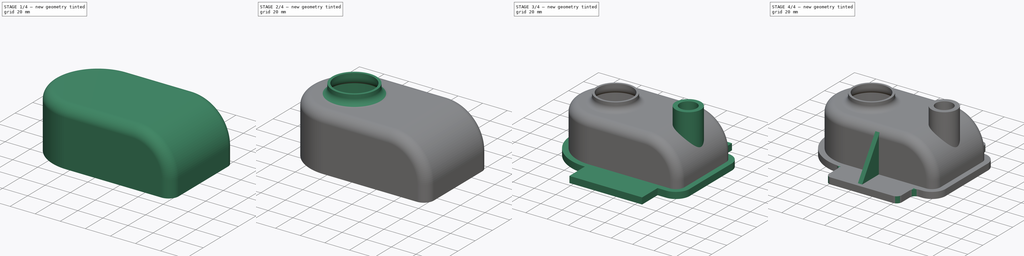
[diagram: build sequence overview — one tinted view per stage of 4, left to right]
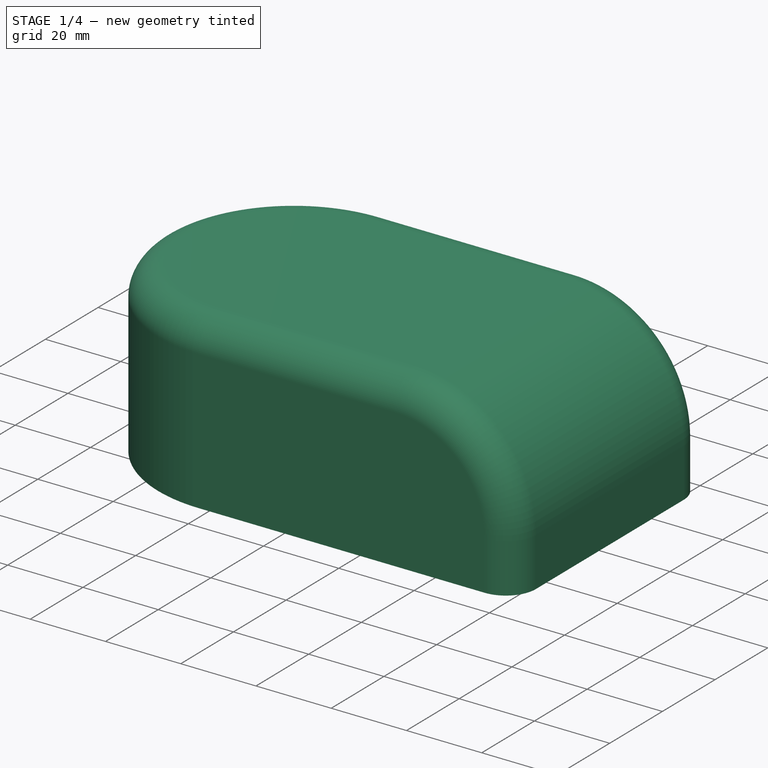
[diagram: stage 1 of 4 — iso view after this stage's code; geometry added in this stage tinted green]
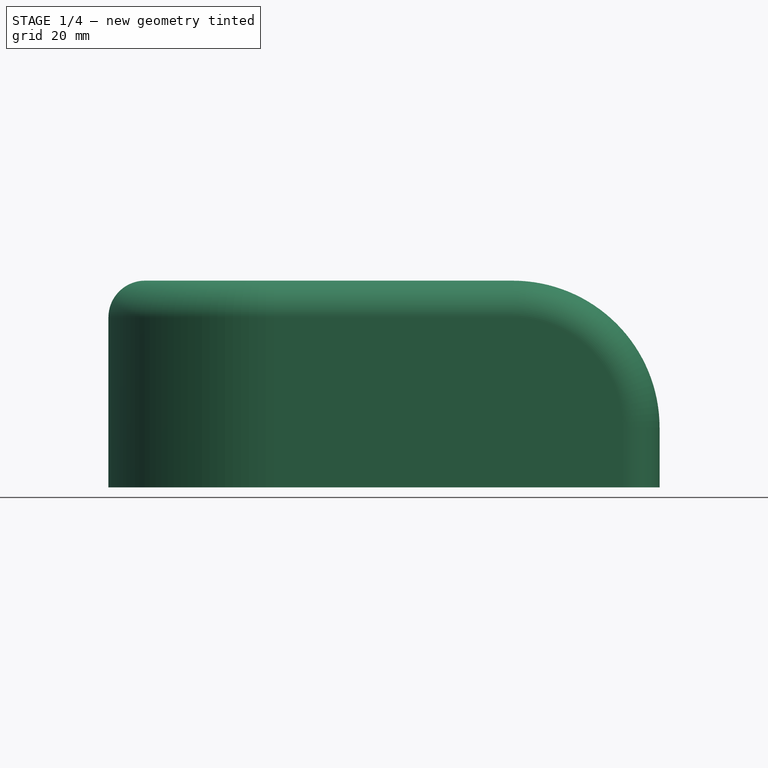
[diagram: stage 1 of 4 — front view after this stage's code; geometry added in this stage tinted green]
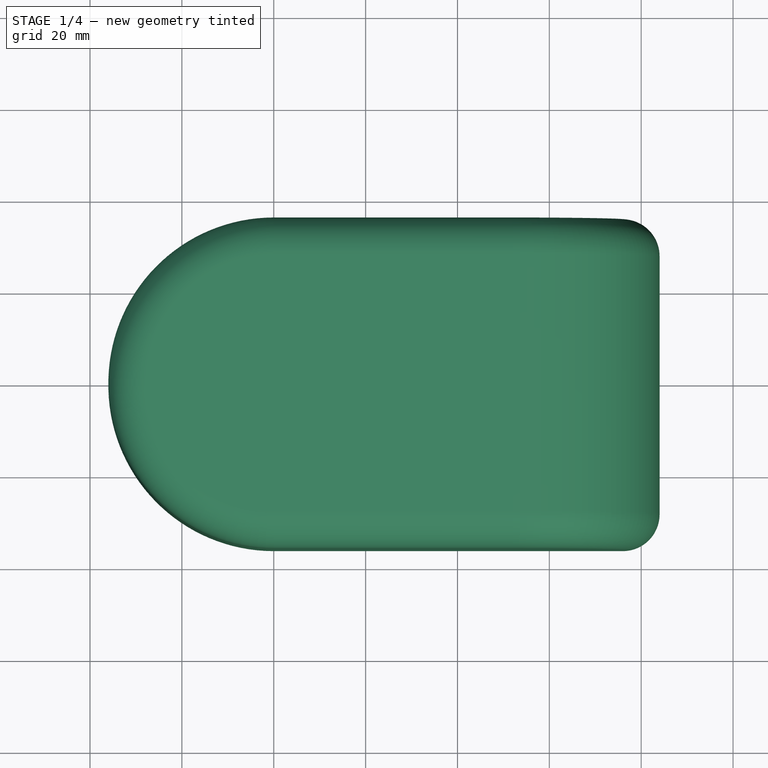
[diagram: stage 1 of 4 — top view after this stage's code; geometry added in this stage tinted green]
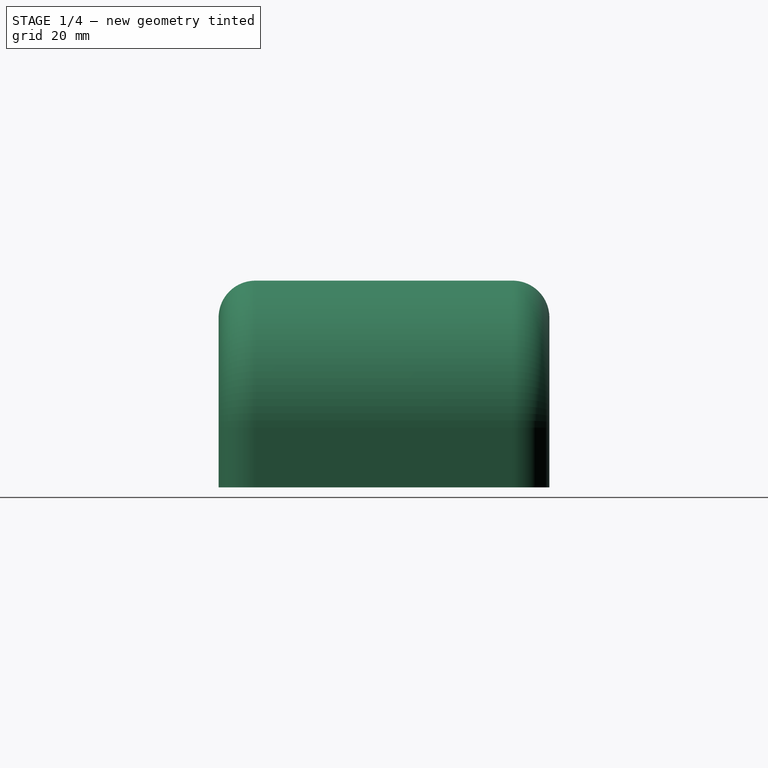
[diagram: stage 1 of 4 — right view after this stage's code; geometry added in this stage tinted green]
FCSTD DOCUMENT  (FreeCAD 0.21R33771 (Git))
Label: ex02
License: All rights reserved
LicenseURL: https://en.wikipedia.org/wiki/All_rights_reserved
objects: Sketcher::SketchObject×7, PartDesign::Pad×6, PartDesign::Fillet×4, PartDesign::Plane×2, PartDesign::Thickness×1, PartDesign::Pocket×1, PartDesign::Mirrored×1, PartDesign::Body×1
note: 35 computed .brp shape members not serialized (recipe doc carries the construction recipe); baked Part::Feature solids carry a one-line shape summary decoded from their .brp

FEATURE [Sketcher::SketchObject] Sketch
  FullyConstrained = true
  MapMode = 5
  Support = -> [XY_Plane]
  sketch-geometry (6):
    g0: ArcOfCircle CenterX=0 CenterY=0 CenterZ=0 NormalX=0 NormalY=0 NormalZ=1 AngleXU=0 Radius=36 StartAngle=1.5708 EndAngle=4.71239
    g1: ArcOfCircle CenterX=84 CenterY=0 CenterZ=0 NormalX=0 NormalY=0 NormalZ=1 AngleXU=0 Radius=36 StartAngle=4.71239 EndAngle=7.85398
    g2: LineSegment StartX=5.05e-13 StartY=-36 StartZ=0 EndX=84 EndY=-36 EndZ=0
    g3: LineSegment StartX=84 StartY=36 StartZ=0 EndX=4.974e-13 EndY=36 EndZ=0
    g4: LineSegment StartX=84 StartY=36 StartZ=0 EndX=84 EndY=-36 EndZ=0
    g5: GeomPoint X=-36 Y=0 Z=0
  constraints (13):
    c: Tangent(g0,g2) = -1.5708
    c: Tangent(g2,g1) = -1.5708
    c: Tangent(g1,g3) = -1.5708
    c: Tangent(g3,g0) = -1.5708
    c: Equal(g0,g1)
    c: Coincident(g0,g-1)
    c: PointOnObject(g1,g-1)
    c: Coincident(g4,g3)
    c: Coincident(g4,g2)
    c: PointOnObject(g5,g0)
    c: PointOnObject(g5,g-1)
    c: DistanceX(g5,g1) = 120
    c: DistanceY(g4,g4) = 72
FEATURE [PartDesign::Pad] Pad
  Direction = (0,0,1)
  Length = 45
  Length2 = 10
  Profile = -> Sketch
  ReferenceAxis = -> Sketch [N_Axis]
  Type = 0
FEATURE [PartDesign::Fillet] Fillet
  Base = -> Pad [Edge10]
  BaseFeature = -> Pad
  Radius = 32
  SupportTransform = false
  UseAllEdges = false
FEATURE [PartDesign::Fillet] Fillet001
  Base = -> Fillet [Edge2]
  BaseFeature = -> Fillet
  Radius = 8
  SupportTransform = false
  UseAllEdges = false
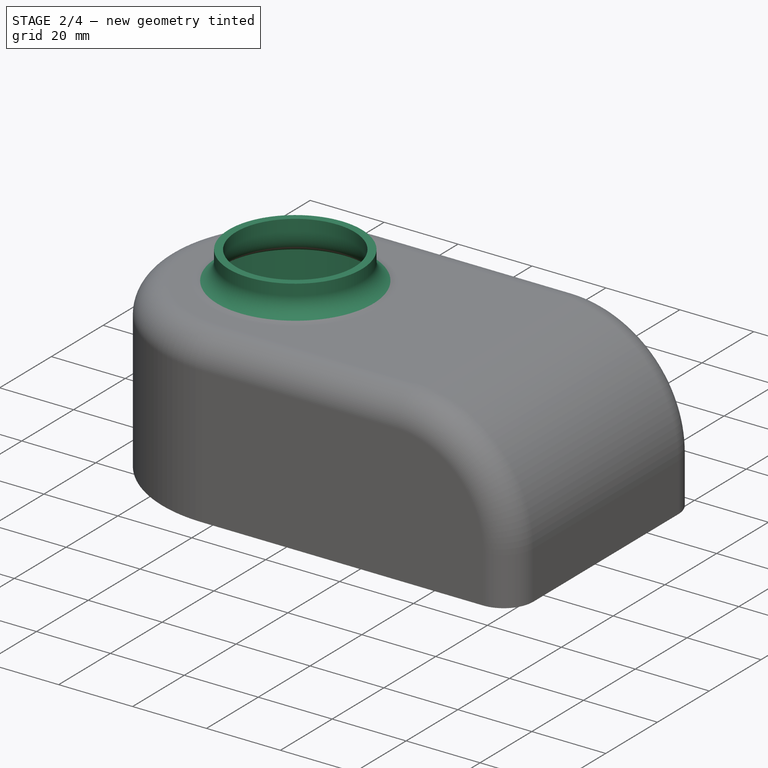
[diagram: stage 2 of 4 — iso view after this stage's code; geometry added in this stage tinted green]
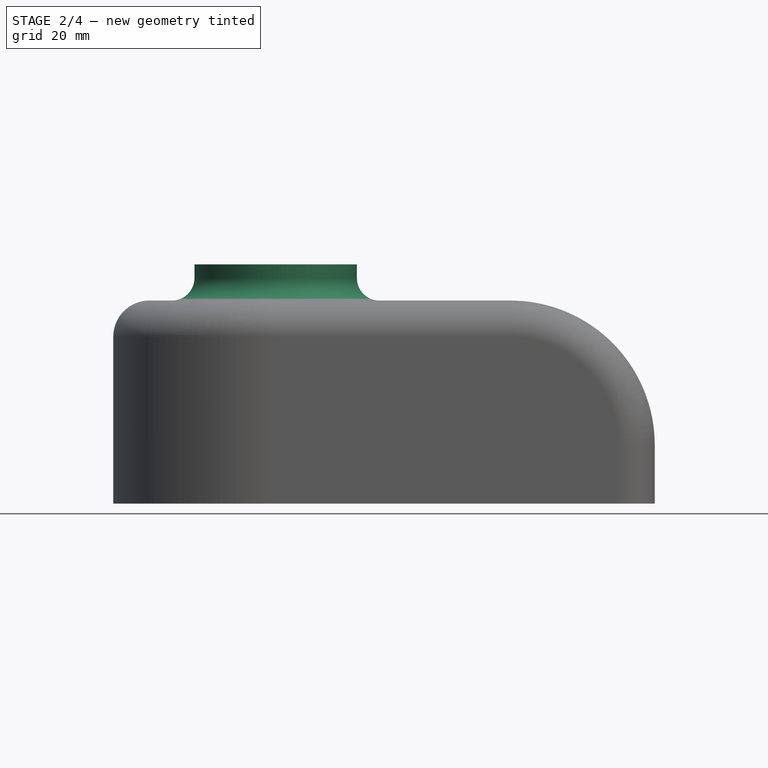
[diagram: stage 2 of 4 — front view after this stage's code; geometry added in this stage tinted green]
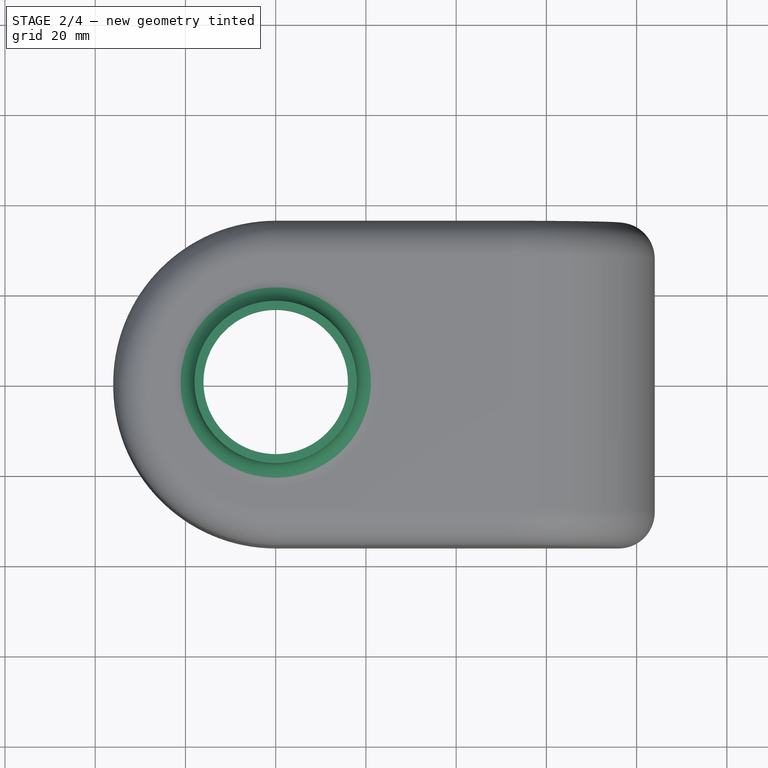
[diagram: stage 2 of 4 — top view after this stage's code; geometry added in this stage tinted green]
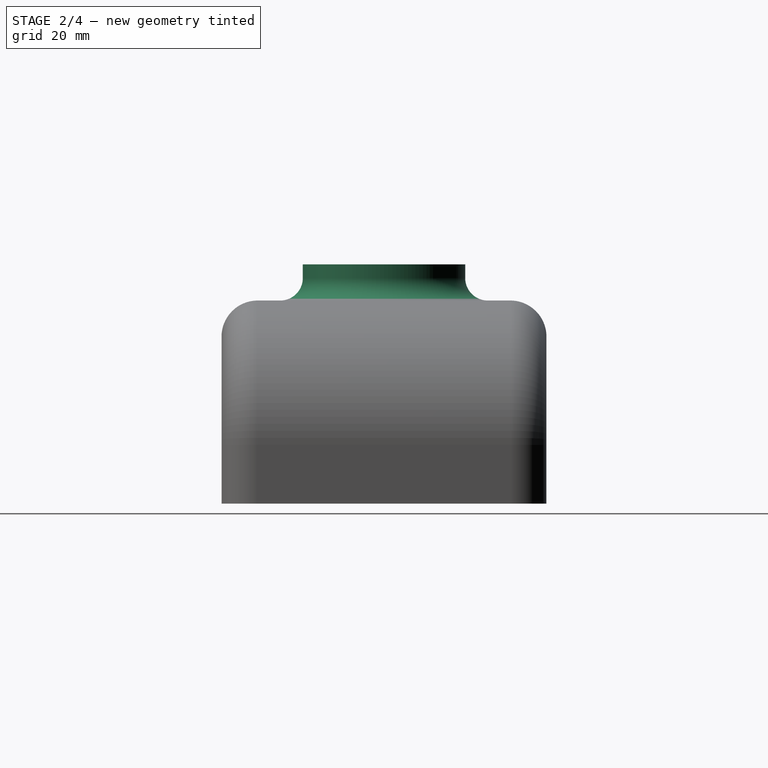
[diagram: stage 2 of 4 — right view after this stage's code; geometry added in this stage tinted green]
FEATURE [Sketcher::SketchObject] Sketch001
  FullyConstrained = true
  MapMode = 5
  Placement = pos=(0,0,45) rot=(0,0,1;0rad)
  Support = -> [Fillet001]
  sketch-geometry (1):
    g0: Circle CenterX=0 CenterY=0 CenterZ=0 NormalX=0 NormalY=0 NormalZ=1 AngleXU=0 Radius=18
  constraints (2):
    c: Coincident(g0,g-1)
    c: Diameter(g0) = 36
FEATURE [PartDesign::Pad] Pad001
  BaseFeature = -> Fillet001
  Direction = (0,0,1)
  Length = 8
  Length2 = 10
  Profile = -> Sketch001
  ReferenceAxis = -> Sketch001 [N_Axis]
  Type = 0
FEATURE [PartDesign::Fillet] Fillet002
  Base = -> Pad001 [Edge30]
  BaseFeature = -> Pad001
  Radius = 5
  SupportTransform = false
  UseAllEdges = false
FEATURE [PartDesign::Thickness] Thickness
  Base = -> Fillet002 [Face17,Face14]
  BaseFeature = -> Fillet002
  Intersection = false
  Join = 0
  Mode = 0
  Reversed = true
  SupportTransform = false
  Value = 2
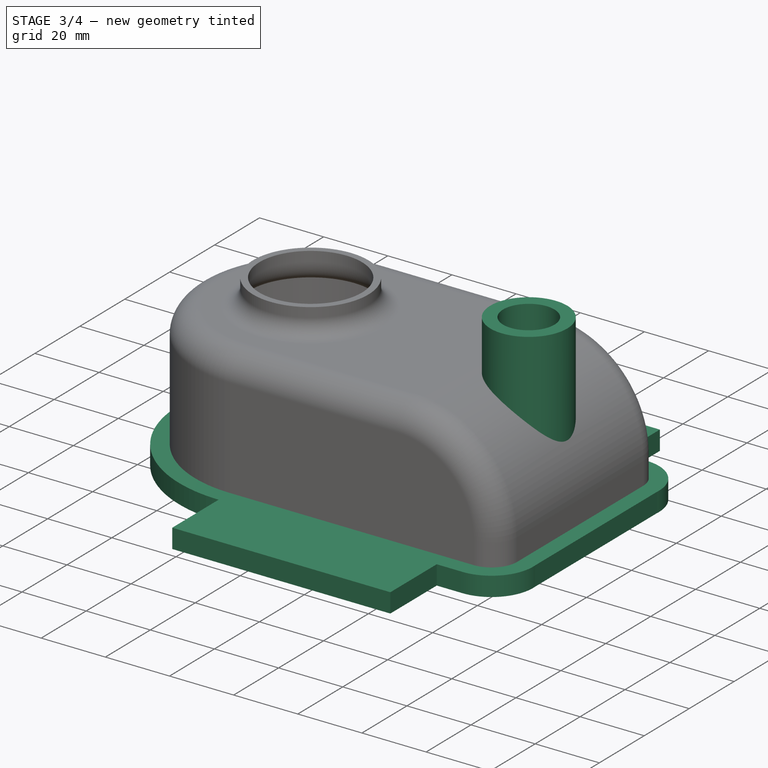
[diagram: stage 3 of 4 — iso view after this stage's code; geometry added in this stage tinted green]
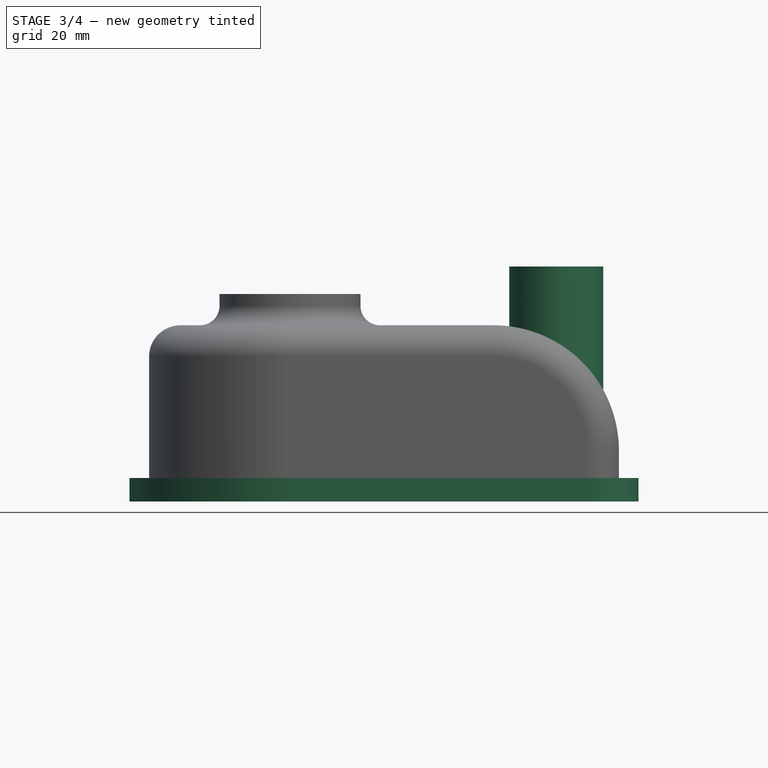
[diagram: stage 3 of 4 — front view after this stage's code; geometry added in this stage tinted green]
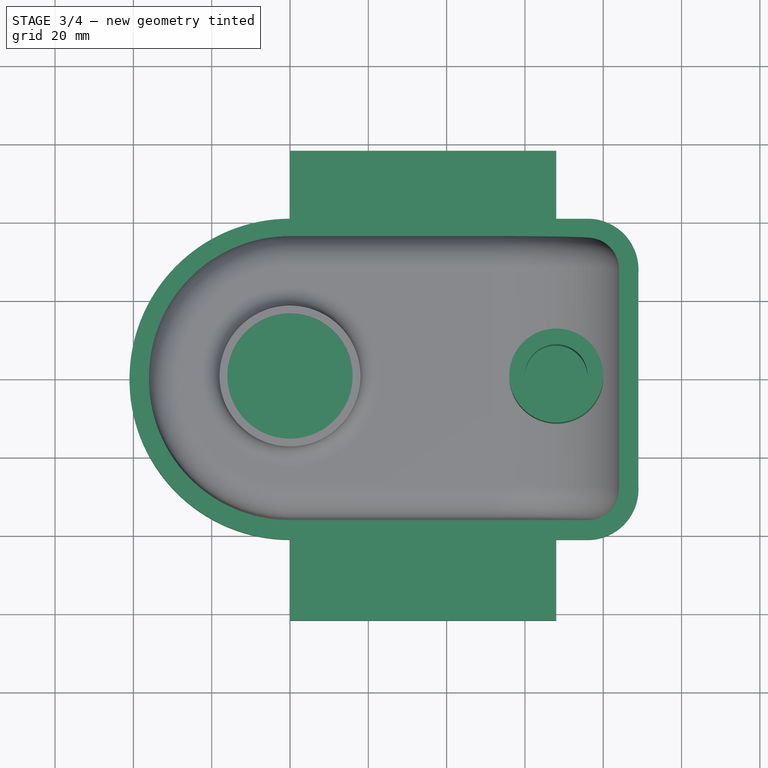
[diagram: stage 3 of 4 — top view after this stage's code; geometry added in this stage tinted green]
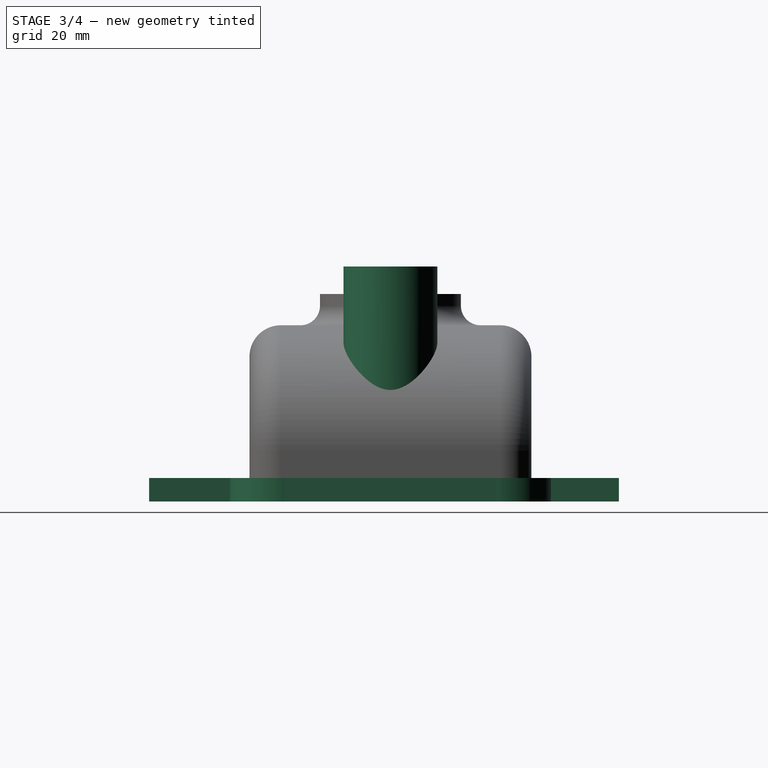
[diagram: stage 3 of 4 — right view after this stage's code; geometry added in this stage tinted green]
FEATURE [PartDesign::Plane] DatumPlane
  AttachmentOffset = pos=(0,0,60) rot=(0,0,1;0rad)
  Length = 154.844
  MapMode = 5
  Placement = pos=(0,0,60) rot=(0,0,1;0rad)
  ResizeMode = 0
  Support = -> [XY_Plane]
  Width = 144.968
FEATURE [Sketcher::SketchObject] Sketch002
  ExternalGeometry = -> [Thickness]
  FullyConstrained = true
  MapMode = 5
  Placement = pos=(0,0,60) rot=(0,0,1;0rad)
  Support = -> [DatumPlane]
  sketch-geometry (1):
    g0: Circle CenterX=68 CenterY=0 CenterZ=0 NormalX=0 NormalY=0 NormalZ=1 AngleXU=0 Radius=12
  constraints (3):
    c: PointOnObject(g0,g-1)
    c: Diameter(g0) = 24
    c: Distance(g0,g-3) = 16
FEATURE [PartDesign::Pad] Pad002
  BaseFeature = -> Thickness
  Direction = (0,0,1)
  Length = 18
  Length2 = 10
  Profile = -> Sketch002
  ReferenceAxis = -> Sketch002 [N_Axis]
  Reversed = true
  Type = 2
FEATURE [Sketcher::SketchObject] Sketch003
  ExternalGeometry = -> [Pad002]
  FullyConstrained = true
  MapMode = 5
  Placement = pos=(0,0,60) rot=(0,0,1;0rad)
  Support = -> [Pad002]
  sketch-geometry (3):
    g0: Circle CenterX=68 CenterY=0 CenterZ=0 NormalX=0 NormalY=0 NormalZ=1 AngleXU=0 Radius=8
    g1: GeomPoint X=76 Y=0 Z=0
    g2: GeomPoint X=80 Y=0 Z=0
  constraints (6):
    c: Coincident(g0,g-3)
    c: PointOnObject(g1,g0)
    c: PointOnObject(g1,g-1)
    c: PointOnObject(g2,g-3)
    c: PointOnObject(g2,g-1)
    c: DistanceX(g1,g2) = 4
FEATURE [PartDesign::Pocket] Pocket
  BaseFeature = -> Pad002
  Direction = (0,0,-1)
  Length = 5
  Length2 = 5
  Profile = -> Sketch003
  ReferenceAxis = -> Sketch003 [N_Axis]
  Type = 1
FEATURE [Sketcher::SketchObject] Sketch004
  ExternalGeometry = -> [Pocket]
  FullyConstrained = false
  MapMode = 5
  Support = -> [XY_Plane]
  sketch-geometry (6):
    g0: ArcOfCircle CenterX=0 CenterY=0 CenterZ=0 NormalX=0 NormalY=0 NormalZ=1 AngleXU=0 Radius=41 StartAngle=1.5708 EndAngle=4.71239
    g1: ArcOfCircle CenterX=76 CenterY=28 CenterZ=0 NormalX=0 NormalY=0 NormalZ=1 AngleXU=0 Radius=13.0016 StartAngle=6.21912 EndAngle=7.86987
    g2: ArcOfCircle CenterX=76 CenterY=-28 CenterZ=0 NormalX=0 NormalY=0 NormalZ=1 AngleXU=0 Radius=13.0016 StartAngle=4.6965 EndAngle=6.34725
    g3: LineSegment StartX=2.5e-15 StartY=41 StartZ=0 EndX=75.7934 EndY=41 EndZ=0
    g4: LineSegment StartX=-7.5e-15 StartY=-41 StartZ=0 EndX=75.7934 EndY=-41 EndZ=0
    g5: LineSegment StartX=88.975 StartY=27.1676 StartZ=0 EndX=88.975 EndY=-27.1676 EndZ=0
  constraints (16):
    c: Coincident(g0,g-3)
    c: PointOnObject(g0,g-2)
    c: PointOnObject(g0,g-2)
    c: Coincident(g1,g-4)
    c: Coincident(g2,g-5)
    c: Coincident(g3,g0)
    c: Coincident(g3,g1)
    c: Coincident(g4,g0)
    c: Coincident(g4,g2)
    c: Coincident(g5,g1)
    c: Coincident(g5,g2)
    c: Vertical(g5)
    c: Equal(g1,g2)
    c: Equal(g3,g4)
    c: Horizontal(g3)
    c: DistanceY(g-3,g0) = 5
FEATURE [PartDesign::Pad] Pad003
  BaseFeature = -> Pocket
  Direction = (0,0,1)
  Length = 6
  Length2 = 10
  Profile = -> Sketch004
  ReferenceAxis = -> Sketch004 [N_Axis]
  Type = 0
FEATURE [Sketcher::SketchObject] Sketch005
  ExternalGeometry = -> [Pad003]
  FullyConstrained = false
  MapMode = 5
  Support = -> [XY_Plane]
  sketch-geometry (4):
    g0: LineSegment StartX=0 StartY=58.3543 StartZ=0 EndX=68 EndY=58.3543 EndZ=0
    g1: LineSegment StartX=68 StartY=58.3543 StartZ=0 EndX=68 EndY=-61.6457 EndZ=0
    g2: LineSegment StartX=68 StartY=-61.6457 StartZ=0 EndX=0 EndY=-61.6457 EndZ=0
    g3: LineSegment StartX=0 StartY=-61.6457 StartZ=0 EndX=0 EndY=58.3543 EndZ=0
  constraints (11):
    c: Coincident(g0,g1)
    c: Coincident(g1,g2)
    c: Coincident(g2,g3)
    c: Coincident(g3,g0)
    c: Horizontal(g0)
    c: Horizontal(g2)
    c: Vertical(g1)
    c: Vertical(g3)
    c: PointOnObject(g-4,g1)
    c: PointOnObject(g-3,g3)
    c: DistanceY(g1,g1) = 120
FEATURE [PartDesign::Pad] Pad004
  BaseFeature = -> Pad003
  Direction = (0,0,1)
  Length = 6
  Length2 = 10
  Profile = -> Sketch005
  ReferenceAxis = -> Sketch005 [N_Axis]
  Type = 0
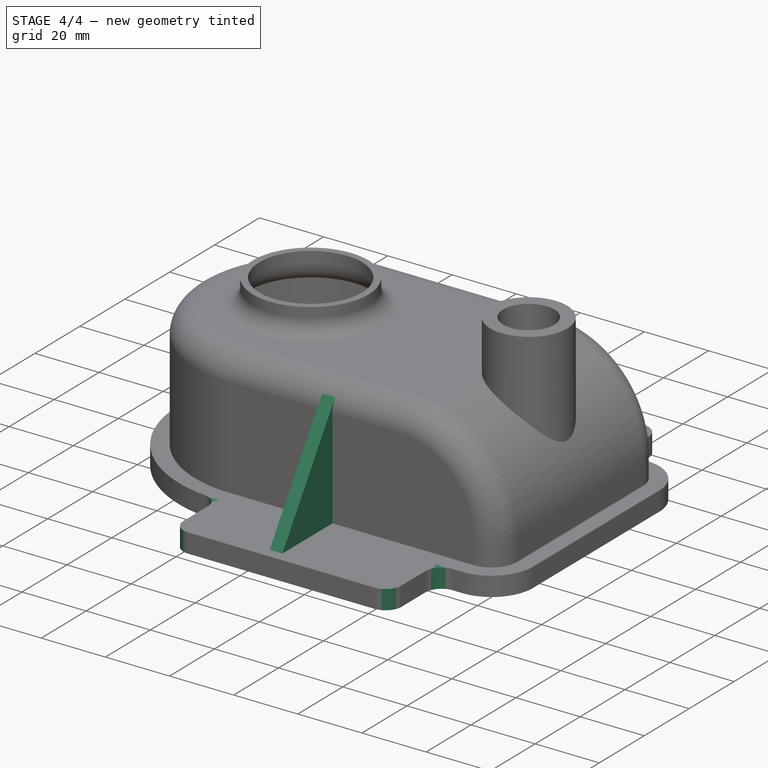
[diagram: stage 4 of 4 — iso view after this stage's code; geometry added in this stage tinted green]
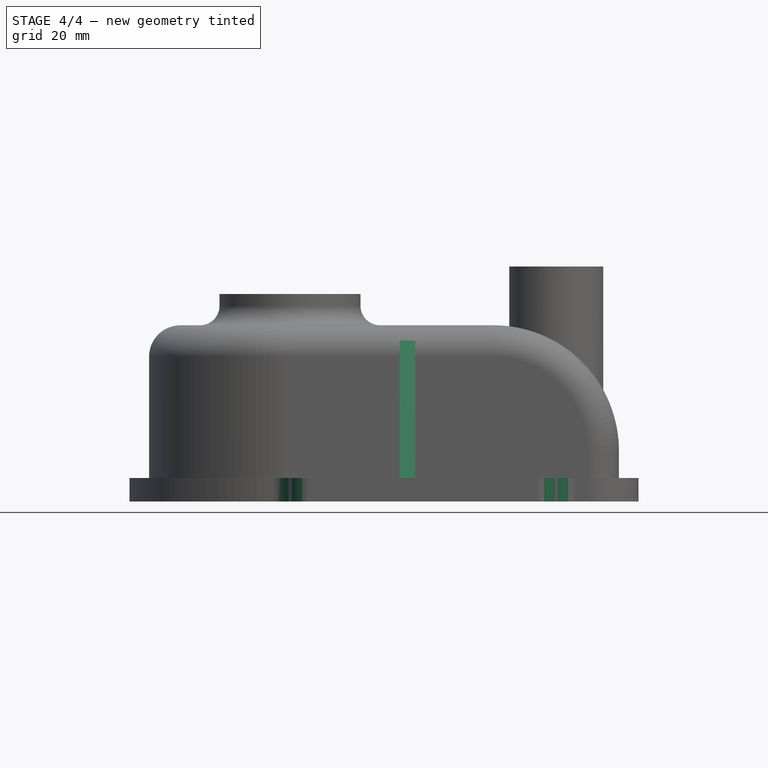
[diagram: stage 4 of 4 — front view after this stage's code; geometry added in this stage tinted green]
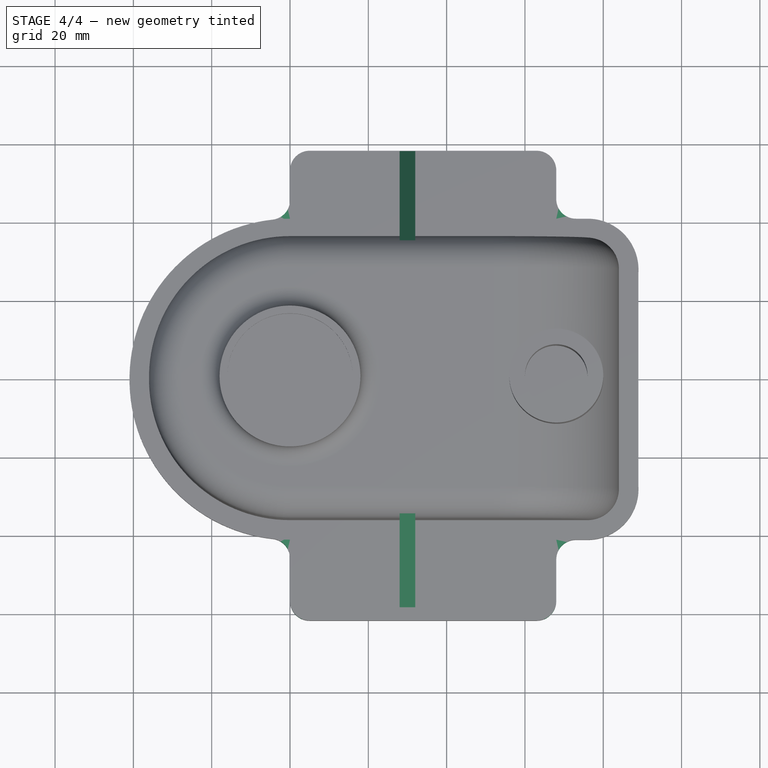
[diagram: stage 4 of 4 — top view after this stage's code; geometry added in this stage tinted green]
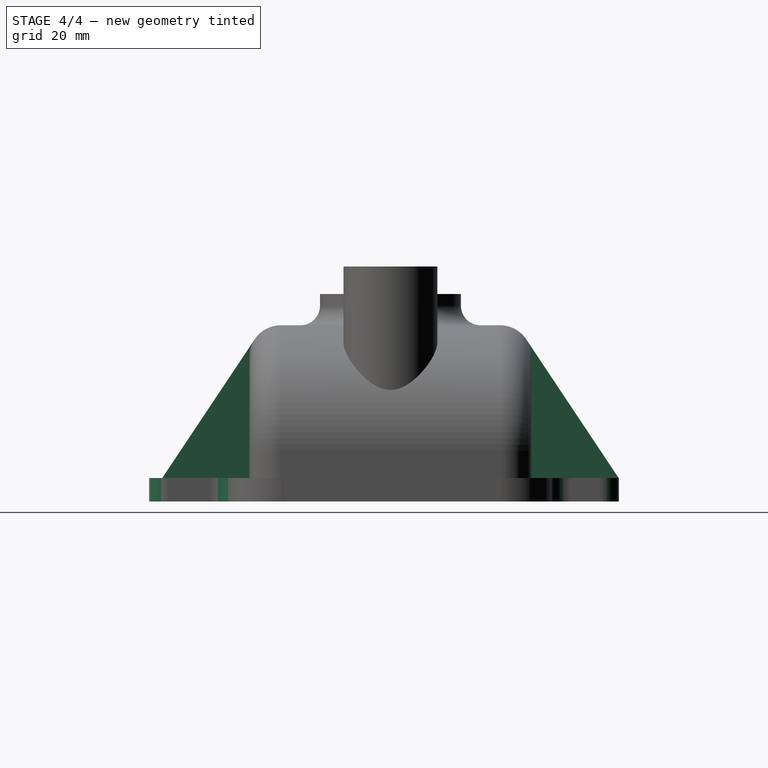
[diagram: stage 4 of 4 — right view after this stage's code; geometry added in this stage tinted green]
FEATURE [PartDesign::Fillet] Fillet003
  Base = -> Pad004 [Edge99,Edge89,Edge96,Edge91,Edge76,Edge77,Edge63,Edge66]
  BaseFeature = -> Pad004
  Radius = 5
  SupportTransform = false
  UseAllEdges = false
FEATURE [PartDesign::Plane] DatumPlane001
  AttachmentOffset = pos=(0,0,-32) rot=(0,0,1;0rad)
  Length = 140.199
  MapMode = 5
  Placement = pos=(32,0,0) rot=(0.57735,-0.57735,-0.57735;2.0944rad)
  ResizeMode = 0
  Support = -> [Fillet003]
  Width = 105.199
FEATURE [Sketcher::SketchObject] Sketch006
  ExternalGeometry = -> [Fillet003]
  FullyConstrained = false
  MapMode = 5
  Placement = pos=(32,0,0) rot=(0.57735,-0.57735,-0.57735;2.0944rad)
  Support = -> [DatumPlane001]
  sketch-geometry (3):
    g0: LineSegment StartX=-58.3543 StartY=5.86962 StartZ=0 EndX=-34.8797 EndY=5.86962 EndZ=0
    g1: LineSegment StartX=-34.8797 StartY=5.86962 StartZ=0 EndX=-34.8797 EndY=41.0828 EndZ=0
    g2: LineSegment StartX=-34.8797 StartY=41.0828 StartZ=0 EndX=-58.3543 EndY=5.86962 EndZ=0
  constraints (6):
    c: Horizontal(g0)
    c: Coincident(g1,g0)
    c: PointOnObject(g1,g-3)
    c: Coincident(g2,g1)
    c: Coincident(g2,g0)
    c: Vertical(g1)
FEATURE [PartDesign::Pad] Pad005
  BaseFeature = -> Fillet003
  Direction = (-1,0,0)
  Length = 4
  Length2 = 10
  Profile = -> Sketch006
  ReferenceAxis = -> Sketch006 [N_Axis]
  Type = 0
FEATURE [PartDesign::Mirrored] Mirrored
  BaseFeature = -> Pad005
  MirrorPlane = -> XZ_Plane
  Originals = -> [Pad005]
FEATURE [PartDesign::Body] Body
  Group = -> [Sketch,Pad,Fillet,Fillet001,Sketch001,Pad001,Fillet002,Thickness,DatumPlane,Sketch002,Pad002,Sketch003,Pocket,Sketch004,Pad003,Sketch005,Pad004,Fillet003,DatumPlane001,Sketch006,Pad005,Mirrored]
  Origin = -> Origin
  Tip = -> Mirrored
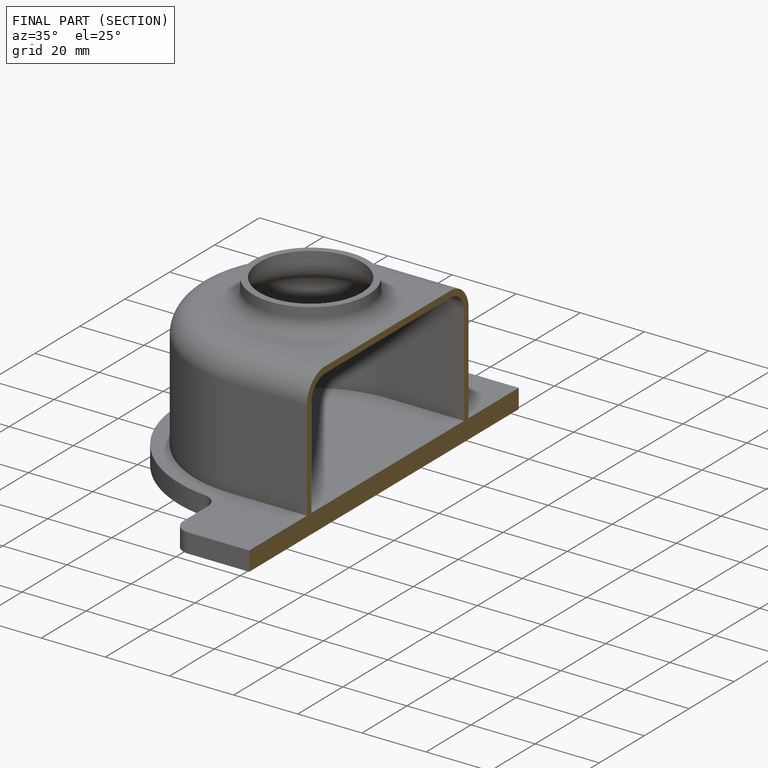
[diagram: finished part — half-section view (interior)]
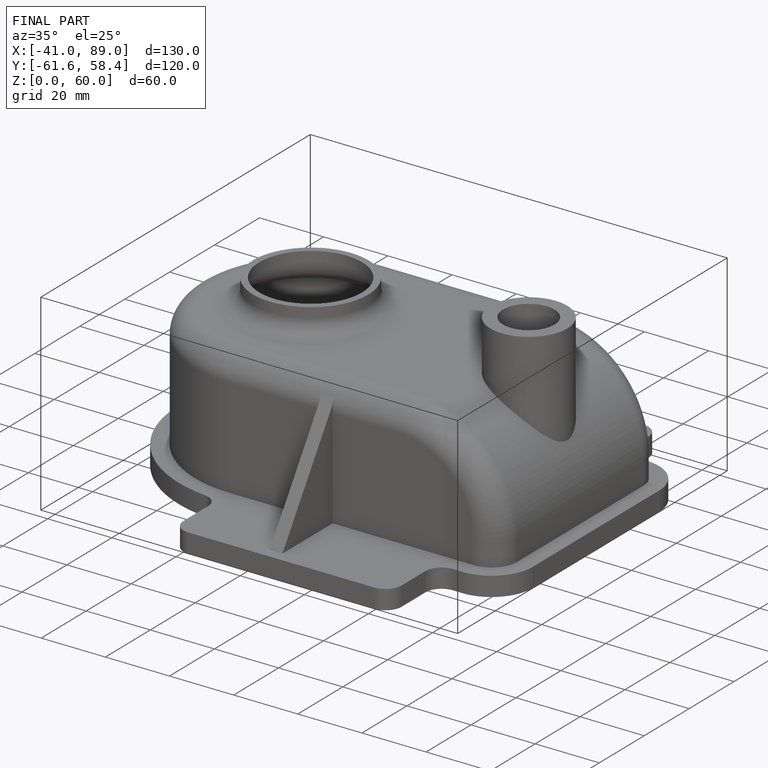
[diagram: finished part — iso view with bounding-box wireframe]
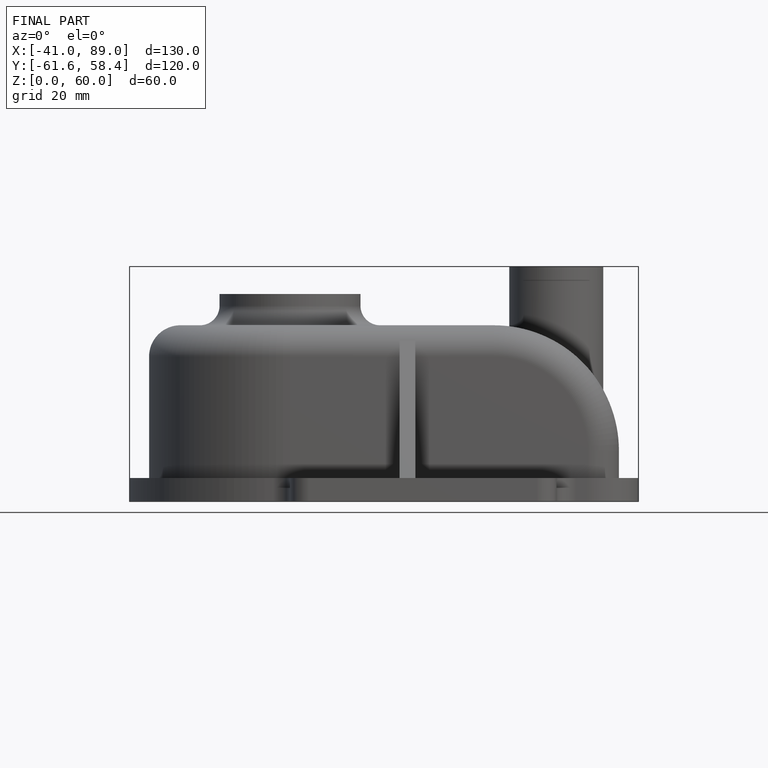
[diagram: finished part — front view with bounding-box wireframe]
